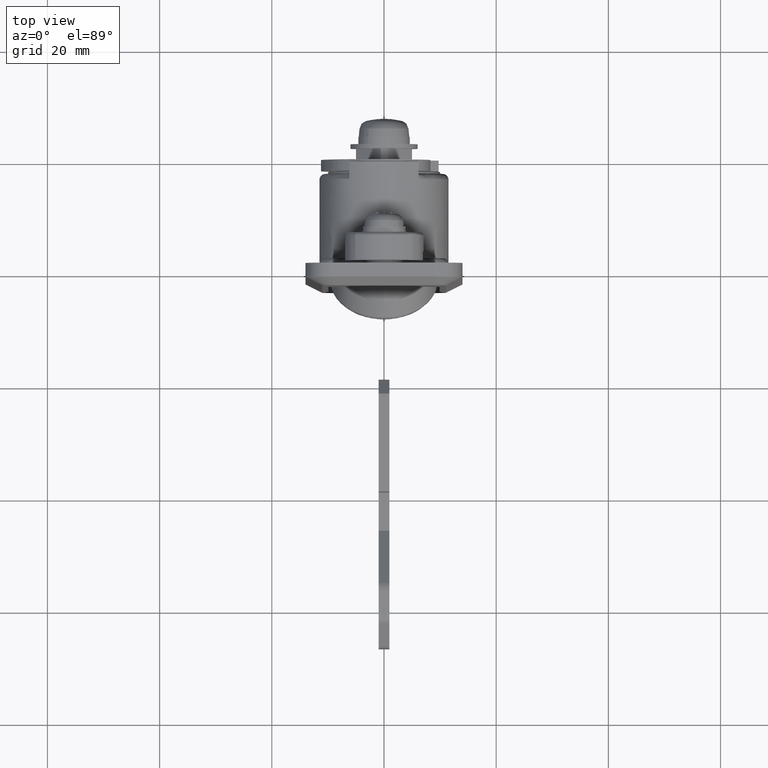
[diagram: clean part render]
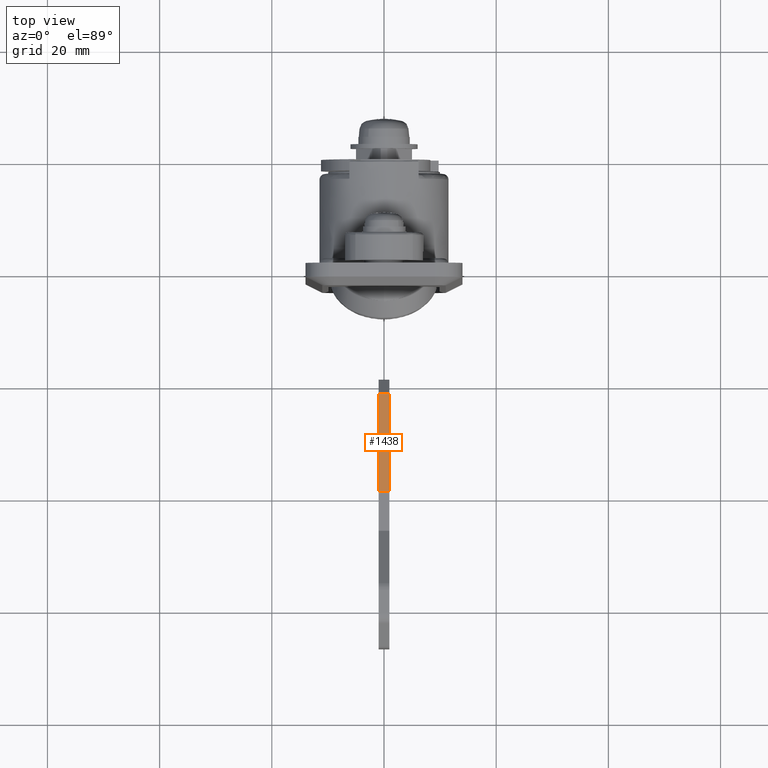
[diagram: same view with one face highlighted and labeled with its STEP entity id]
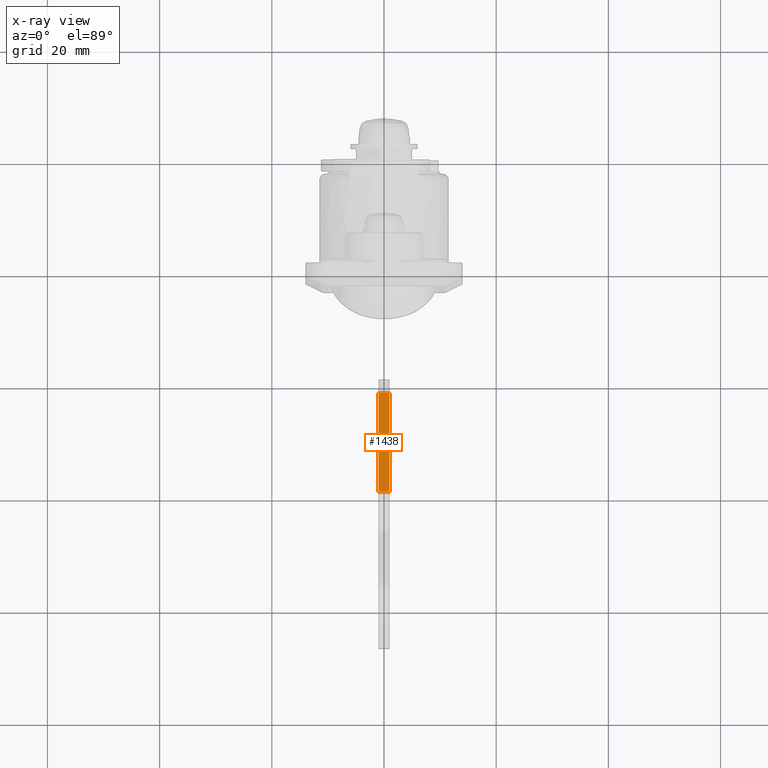
[diagram: x-ray of the same camera — body ghosted, the highlighted face saturated]
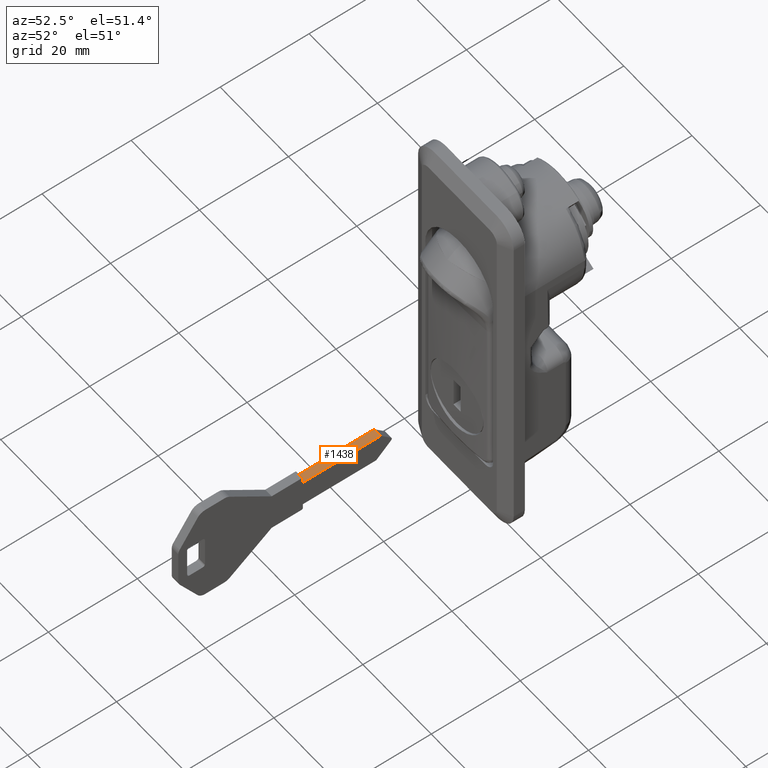
[diagram: same view with one face highlighted and labeled with its STEP entity id]
A machine part, top view. The second image highlights one B-rep face of the part: STEP entity #1438.
The next image is the same camera in x-ray: the body ghosted, the highlighted face saturated — about 0% of this face is hidden behind the body in this view.
A second angle (auxiliary view) of the same face is appended — the face is thin or edge-on in the first view.
In plain terms, the highlighted face is a freeform B-spline surface patch.
Its self-contained STEP definition (entity closure, byte-faithful):
#505=CARTESIAN_POINT('',(-38.876463193805449,0.950000000000000,-63.750000000000000));
#506=VERTEX_POINT('',#505);
#512=CARTESIAN_POINT('',(-21.376463193805449,0.950000000000000,-63.750000000000000));
#513=VERTEX_POINT('',#512);
#514=CARTESIAN_POINT('',(-38.876463193805449,0.950000000000000,-63.750000000000000));
#515=CARTESIAN_POINT('',(-21.376463193805449,0.950000000000000,-63.750000000000000));
#516=QUASI_UNIFORM_CURVE('',1,(#514,#515),.UNSPECIFIED.,.F.,.U.);
#517=EDGE_CURVE('',#506,#513,#516,.T.);
#927=CARTESIAN_POINT('',(-21.376463193805449,-0.950000000000000,-63.750000000000000));
#928=VERTEX_POINT('',#927);
#934=CARTESIAN_POINT('',(-38.876463193805449,-0.950000000000000,-63.750000000000000));
#935=VERTEX_POINT('',#934);
#936=CARTESIAN_POINT('',(-38.876463193805449,-0.950000000000000,-63.750000000000000));
#937=CARTESIAN_POINT('',(-21.376463193805449,-0.950000000000000,-63.750000000000000));
#938=QUASI_UNIFORM_CURVE('',1,(#936,#937),.UNSPECIFIED.,.F.,.U.);
#939=EDGE_CURVE('',#935,#928,#938,.T.);
#1413=CARTESIAN_POINT('',(-21.376463193805449,-0.950000000000000,-63.750000000000000));
#1414=CARTESIAN_POINT('',(-21.376463193805449,0.950000000000000,-63.750000000000000));
#1415=QUASI_UNIFORM_CURVE('',1,(#1413,#1414),.UNSPECIFIED.,.F.,.U.);
#1416=EDGE_CURVE('',#928,#513,#1415,.T.);
#1423=CARTESIAN_POINT('',(-39.750589966939323,-1.044904996317431,-63.750000000000000));
#1424=CARTESIAN_POINT('',(-20.502337672369119,-1.044904996317431,-63.750000000000000));
#1425=CARTESIAN_POINT('',(-39.750589966939323,1.044905047279403,-63.750000000000000));
#1426=CARTESIAN_POINT('',(-20.502337672369119,1.044905047279403,-63.750000000000000));
#1427=B_SPLINE_SURFACE_WITH_KNOTS('',1,1,((#1423,#1425),(#1424,#1426)),.UNSPECIFIED.,.F.,.F.,.U.,(2,2),(2,2),(0.0,19.248252294570200),(0.0,2.089810043596834),.UNSPECIFIED.);
#1428=ORIENTED_EDGE('',*,*,#517,.F.);
#1429=CARTESIAN_POINT('',(-38.876463193805449,-0.950000000000000,-63.750000000000000));
#1430=CARTESIAN_POINT('',(-38.876463193805449,0.950000000000000,-63.750000000000000));
#1431=QUASI_UNIFORM_CURVE('',1,(#1429,#1430),.UNSPECIFIED.,.F.,.U.);
#1432=EDGE_CURVE('',#935,#506,#1431,.T.);
#1433=ORIENTED_EDGE('',*,*,#1432,.F.);
#1434=ORIENTED_EDGE('',*,*,#939,.T.);
#1435=ORIENTED_EDGE('',*,*,#1416,.T.);
#1436=EDGE_LOOP('',(#1428,#1433,#1434,#1435));
#1437=FACE_OUTER_BOUND('',#1436,.T.);
#1438=ADVANCED_FACE('',(#1437),#1427,.T.);